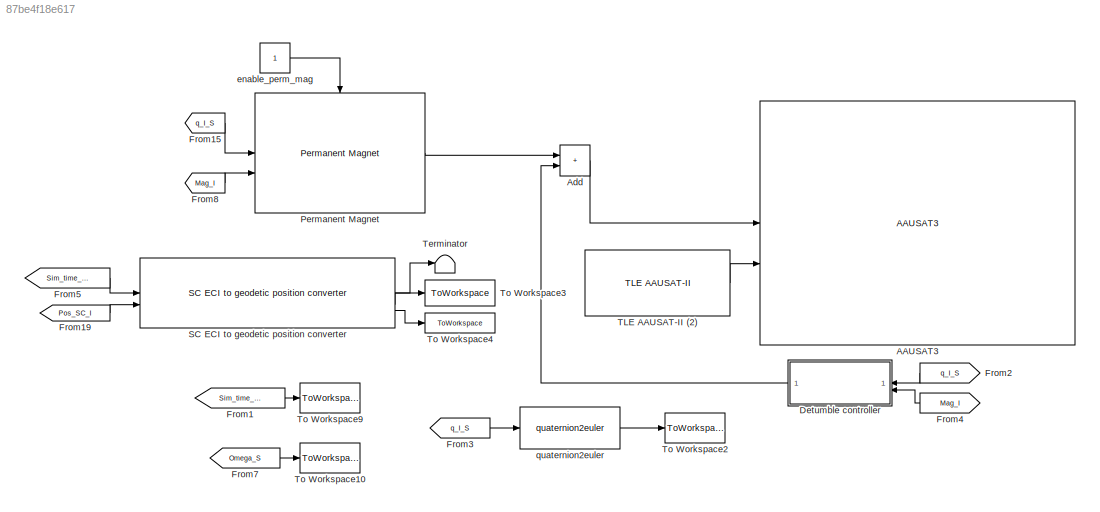
MODEL mdl_87be4f18e617
KIND model
CONFIG AbsTol = auto
CONFIG EnableMultiTasking = on
CONFIG FixedStep = auto
CONFIG MaxStep = auto
CONFIG MinStep = auto
CONFIG RelTol = 1e-3
CONFIG SampleTimeConstraint = Unconstrained
CONFIG SolverName = ode45
CONFIG StartTime = 0.0
CONFIG StopTime = 5830.0
BLOCK [Reference] AAUSAT3  REF=aausat3_lib/AAUSAT3  (lib defined in mdl_4157f6465749, slx_d9305f96731e)
  SourceBlock = aausat3_lib/AAUSAT3
  SourceProductName = AAUSAT3
BLOCK [Sum] Add
  IconShape = rectangular
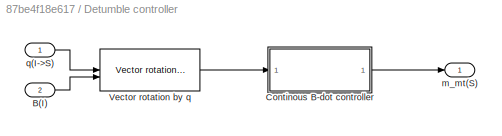
BLOCK [SubSystem] Detumble controller
BLOCK [Inport] Detumble controller/B(I)
  Port = 2
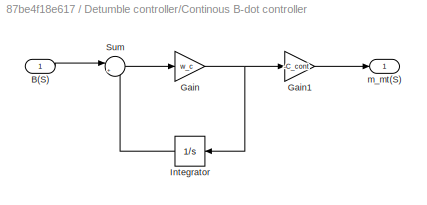
BLOCK [SubSystem] Detumble controller/Continous B-dot controller
BLOCK [Inport] Detumble controller/Continous B-dot controller/B(S)
BLOCK [Gain] Detumble controller/Continous B-dot controller/Gain
  Gain = w_c
BLOCK [Gain] Detumble controller/Continous B-dot controller/Gain1
  Gain = -C_cont
BLOCK [Integrator] Detumble controller/Continous B-dot controller/Integrator
  NameLocation = top
BLOCK [Sum] Detumble controller/Continous B-dot controller/Sum
  Inputs = |+-
BLOCK [Outport] Detumble controller/Continous B-dot controller/m_mt(S)
BLOCK [Reference] Detumble controller/Vector rotation by q  REF=aausat3_lib/Math Utilities/Quaternion operations/Vector rotation by q  (lib defined in mdl_4157f6465749, slx_d9305f96731e)
  SourceBlock = aausat3_lib/Math Utilities/Quaternion operations/Vector rotation by q
  SourceProductName = AAUSAT3
  SourceType = SubSystem
BLOCK [Outport] Detumble controller/m_mt(S)
BLOCK [Inport] Detumble controller/q(I->S)
BLOCK [From] From1
  CloseFcn = tagdialog Close
  GotoTag = Sim_time_JD
  TagVisibility = global
BLOCK [From] From15
  CloseFcn = tagdialog Close
  GotoTag = q_I_S
  TagVisibility = global
BLOCK [From] From19
  CloseFcn = tagdialog Close
  GotoTag = Pos_SC_I
  TagVisibility = global
BLOCK [From] From2
  CloseFcn = tagdialog Close
  GotoTag = q_I_S
  NameLocation = top
  TagVisibility = global
BLOCK [From] From3
  CloseFcn = tagdialog Close
  GotoTag = q_I_S
  TagVisibility = global
BLOCK [From] From4
  CloseFcn = tagdialog Close
  GotoTag = Mag_I
  NameLocation = top
  TagVisibility = global
BLOCK [From] From5
  CloseFcn = tagdialog Close
  GotoTag = Sim_time_JD
  TagVisibility = global
BLOCK [From] From7
  CloseFcn = tagdialog Close
  GotoTag = Omega_S
  TagVisibility = global
BLOCK [From] From8
  CloseFcn = tagdialog Close
  GotoTag = Mag_I
  TagVisibility = global
BLOCK [Reference] Permanent Magnet  REF=aausat3_lib/Actuator Emulation/Permanent Magnet  (lib defined in mdl_4157f6465749, slx_d9305f96731e)
  SourceBlock = aausat3_lib/Actuator Emulation/Permanent Magnet
  SourceProductName = AAUSAT3
BLOCK [Reference] SC ECI to geodetic position converter  REF=aausat3_lib/Other Model Utilities/SC ECI to geodetic position converter  (lib defined in mdl_4157f6465749, slx_d9305f96731e)
  SourceBlock = aausat3_lib/Other Model Utilities/SC ECI to geodetic position converter
  SourceProductName = AAUSAT3
BLOCK [Reference] TLE AAUSAT-II (2)  REF=aausat3_lib/Orbit and Ephemeris/TLE AAUSAT-II  (lib defined in mdl_4157f6465749, slx_d9305f96731e)
  SourceBlock = aausat3_lib/Orbit and Ephemeris/TLE AAUSAT-II
  SourceProductName = AAUSAT3
BLOCK [Terminator] Terminator
BLOCK [ToWorkspace] To Workspace10
  MaxDataPoints = inf
  SampleTime = -1
  VariableName = omega_s
BLOCK [ToWorkspace] To Workspace2
  MaxDataPoints = inf
  SampleTime = -1
  VariableName = attitude
BLOCK [ToWorkspace] To Workspace3
  MaxDataPoints = inf
  SampleTime = 1
  VariableName = sc_longitude
BLOCK [ToWorkspace] To Workspace4
  MaxDataPoints = inf
  SampleTime = 1
  VariableName = sc_latitude
BLOCK [ToWorkspace] To Workspace9
  MaxDataPoints = inf
  SampleTime = -1
  VariableName = JD
BLOCK [Constant] enable_perm_mag
BLOCK [Reference] quaternion2euler  REF=aausat3_lib/Math Utilities/Quaternion operations/quaternion2euler  (lib defined in mdl_4157f6465749, slx_d9305f96731e)
  SourceBlock = aausat3_lib/Math Utilities/Quaternion operations/quaternion2euler
  SourceProductName = AAUSAT3
  SourceType = SubSystem
LINE Add:1 -> AAUSAT3:1
LINE Detumble controller/B(I):1 -> Detumble controller/Vector rotation by q:2
LINE Detumble controller/Continous B-dot controller/B(S):1 -> Detumble controller/Continous B-dot controller/Sum:1
LINE Detumble controller/Continous B-dot controller/Gain1:1 -> Detumble controller/Continous B-dot controller/m_mt(S):1
NET Detumble controller/Continous B-dot controller/Gain:1 -> Detumble controller/Continous B-dot controller/Gain1:1, Detumble controller/Continous B-dot controller/Integrator:1
LINE Detumble controller/Continous B-dot controller/Integrator:1 -> Detumble controller/Continous B-dot controller/Sum:2
LINE Detumble controller/Continous B-dot controller/Sum:1 -> Detumble controller/Continous B-dot controller/Gain:1
LINE Detumble controller/Continous B-dot controller:1 -> Detumble controller/m_mt(S):1
LINE Detumble controller/Vector rotation by q:1 -> Detumble controller/Continous B-dot controller:1
LINE Detumble controller/q(I->S):1 -> Detumble controller/Vector rotation by q:1
LINE Detumble controller:1 -> Add:2
LINE From15:1 -> Permanent Magnet:1
LINE From19:1 -> SC ECI to geodetic position converter:2
LINE From1:1 -> To Workspace9:1
LINE From2:1 -> Detumble controller:1
LINE From3:1 -> quaternion2euler:1
LINE From4:1 -> Detumble controller:2
LINE From5:1 -> SC ECI to geodetic position converter:1
LINE From7:1 -> To Workspace10:1
LINE From8:1 -> Permanent Magnet:2
LINE Permanent Magnet:1 -> Add:1
LINE SC ECI to geodetic position converter:1 -> Terminator:1
LINE SC ECI to geodetic position converter:2 -> To Workspace3:1
LINE SC ECI to geodetic position converter:3 -> To Workspace4:1
LINE TLE AAUSAT-II (2):1 -> AAUSAT3:2
LINE enable_perm_mag:1 -> Permanent Magnet:enable
LINE quaternion2euler:1 -> To Workspace2:1
note: NET lines group one-source signal fan-out (src -> all destinations, sorted); 1:1 wires keep LINE
